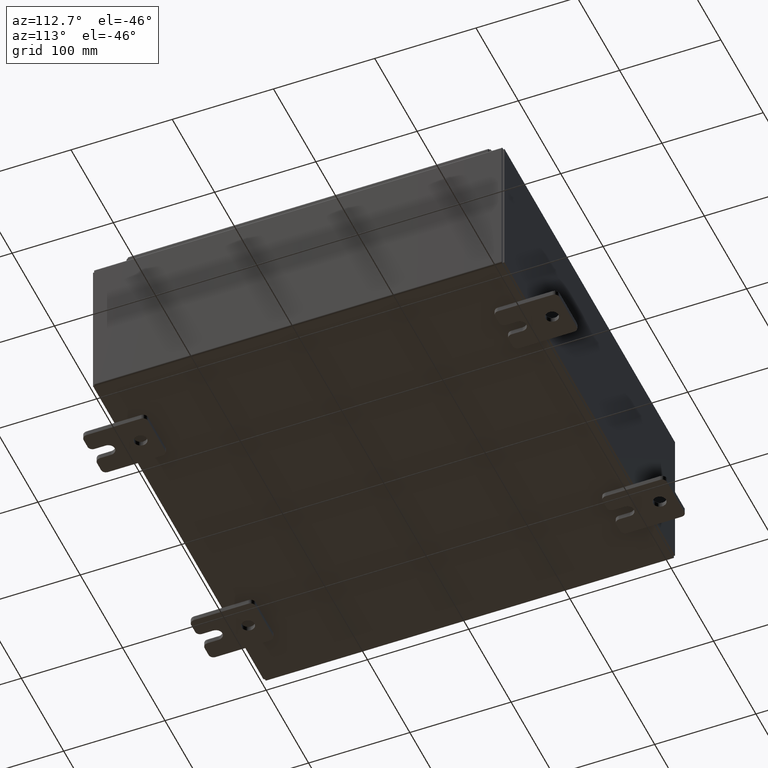
[diagram: clean part render]
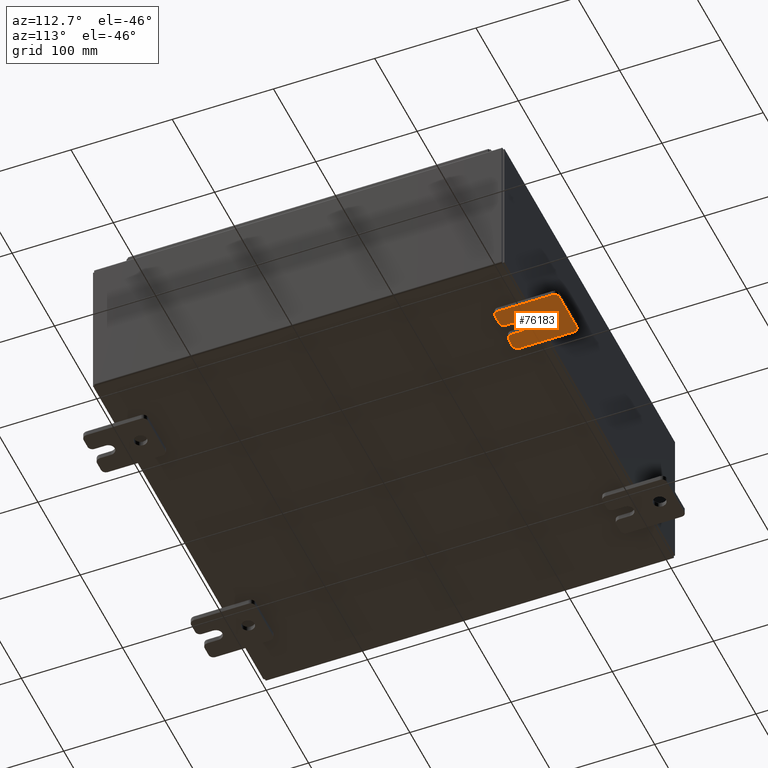
[diagram: same view with one face highlighted and labeled with its STEP entity id]
A machine part, auxiliary view. The second image highlights one B-rep face of the part: STEP entity #76183.
In plain terms, the highlighted planar face has unit normal (0, 0, 1).
Its self-contained STEP definition (entity closure, byte-faithful):
#443 = ORIENTED_EDGE ( 'NONE', *, *, #6986, .T. ) ;
#2052 = ORIENTED_EDGE ( 'NONE', *, *, #31927, .F. ) ;
#2378 = DIRECTION ( 'NONE',  ( -1.000000000000000000, -0.0000000000000000000, 0.0000000000000000000 ) ) ;
#2629 = EDGE_CURVE ( 'NONE', #5216, #86371, #90608, .T. ) ;
#4566 = EDGE_CURVE ( 'NONE', #22547, #68444, #13701, .T. ) ;
#4684 = CARTESIAN_POINT ( 'NONE',  ( -0.1879999999999997800, -1.060000000000004500, -1.000000000000006400 ) ) ;
#5034 = DIRECTION ( 'NONE',  ( 0.0000000000000000000, 0.0000000000000000000, -1.000000000000000000 ) ) ;
#5216 = VERTEX_POINT ( 'NONE', #101483 ) ;
#5678 = CIRCLE ( 'NONE', #13656, 0.1900000000000011100 ) ;
#6074 = ORIENTED_EDGE ( 'NONE', *, *, #74602, .T. ) ;
#6986 = EDGE_CURVE ( 'NONE', #96391, #53823, #93968, .T. ) ;
#7015 = AXIS2_PLACEMENT_3D ( 'NONE', #64469, #15446, #72632 ) ;
#7370 = LINE ( 'NONE', #45206, #89164 ) ;
#8362 = AXIS2_PLACEMENT_3D ( 'NONE', #51330, #2378, #59603 ) ;
#9652 = CARTESIAN_POINT ( 'NONE',  ( -0.1879999999999997800, -1.250000000000005600, -1.000000000000006200 ) ) ;
#10375 = CARTESIAN_POINT ( 'NONE',  ( -0.1880000000000001900, -0.6249999999999992200, 6.829619984160658000E-017 ) ) ;
#10729 = CARTESIAN_POINT ( 'NONE',  ( -0.1880000000000010000, 0.6249999999999992200, 0.2499999999999999200 ) ) ;
#10742 = EDGE_CURVE ( 'NONE', #18351, #46493, #92463, .T. ) ;
#10743 = FACE_BOUND ( 'NONE', #28377, .T. ) ;
#11629 = CARTESIAN_POINT ( 'NONE',  ( -0.1879999999999997800, -1.060000000000002100, 0.4400000000000016700 ) ) ;
#11815 = CARTESIAN_POINT ( 'NONE',  ( -0.1879999999999997800, 1.059999999999993600, -0.8100000000000089400 ) ) ;
#13138 = DIRECTION ( 'NONE',  ( 0.0000000000000000000, 1.639108796198553600E-015, 1.000000000000000000 ) ) ;
#13656 = AXIS2_PLACEMENT_3D ( 'NONE', #23197, #80346, #31425 ) ;
#13701 = CIRCLE ( 'NONE', #33682, 0.1900000000000011100 ) ;
#13988 = CARTESIAN_POINT ( 'NONE',  ( -0.1879999999999997800, -1.250000000000002200, 0.9999999999999992200 ) ) ;
#14542 = CARTESIAN_POINT ( 'NONE',  ( -0.1879999999999997800, 1.059999999999996500, 0.9999999999999953400 ) ) ;
#15241 = LINE ( 'NONE', #86351, #77902 ) ;
#15270 = DIRECTION ( 'NONE',  ( 1.000000000000000000, -0.0000000000000000000, -5.163192708025532000E-017 ) ) ;
#15446 = DIRECTION ( 'NONE',  ( 1.000000000000000000, -0.0000000000000000000, -5.163192708025532000E-017 ) ) ;
#15675 = VECTOR ( 'NONE', #83254, 39.37007874015748100 ) ;
#17345 = DIRECTION ( 'NONE',  ( -1.000000000000000000, -0.0000000000000000000, 0.0000000000000000000 ) ) ;
#18351 = VERTEX_POINT ( 'NONE', #66483 ) ;
#18630 = DIRECTION ( 'NONE',  ( -6.829619984160660000E-016, -1.000000000000000000, 0.0000000000000000000 ) ) ;
#19468 = CIRCLE ( 'NONE', #100804, 0.1900000000000011100 ) ;
#19878 = DIRECTION ( 'NONE',  ( 0.0000000000000000000, 0.0000000000000000000, -1.000000000000000000 ) ) ;
#20067 = DIRECTION ( 'NONE',  ( 0.0000000000000000000, 0.0000000000000000000, -1.000000000000000000 ) ) ;
#20096 = AXIS2_PLACEMENT_3D ( 'NONE', #11629, #68842, #19878 ) ;
#20929 = EDGE_CURVE ( 'NONE', #22547, #32087, #35223, .T. ) ;
#22547 = VERTEX_POINT ( 'NONE', #14542 ) ;
#23197 = CARTESIAN_POINT ( 'NONE',  ( -0.1879999999999997800, -1.060000000000003400, -0.4400000000000005000 ) ) ;
#25323 = EDGE_CURVE ( 'NONE', #49101, #88992, #102632, .T. ) ;
#26275 = CARTESIAN_POINT ( 'NONE',  ( -0.1880000000000001900, -0.6249999999999992200, 0.2500000000000005000 ) ) ;
#26720 = ORIENTED_EDGE ( 'NONE', *, *, #52695, .T. ) ;
#26738 = EDGE_CURVE ( 'NONE', #49101, #46493, #79464, .T. ) ;
#26835 = AXIS2_PLACEMENT_3D ( 'NONE', #64287, #15270, #72465 ) ;
#27861 = DIRECTION ( 'NONE',  ( -6.556435184794182400E-016, -1.000000000000000000, -1.639108796198545600E-016 ) ) ;
#28377 = EDGE_LOOP ( 'NONE', ( #443, #98280 ) ) ;
#29060 = ORIENTED_EDGE ( 'NONE', *, *, #25323, .F. ) ;
#29245 = CARTESIAN_POINT ( 'NONE',  ( -0.1879999999999997800, 1.249999999999994200, -1.000000000000010400 ) ) ;
#31425 = DIRECTION ( 'NONE',  ( 0.0000000000000000000, 0.0000000000000000000, -1.000000000000000000 ) ) ;
#31927 = EDGE_CURVE ( 'NONE', #105502, #60514, #7370, .T. ) ;
#32087 = VERTEX_POINT ( 'NONE', #37463 ) ;
#33094 = CIRCLE ( 'NONE', #75313, 0.2499999999999999200 ) ;
#33682 = AXIS2_PLACEMENT_3D ( 'NONE', #66339, #17345, #74518 ) ;
#33980 = ORIENTED_EDGE ( 'NONE', *, *, #10742, .F. ) ;
#35223 = LINE ( 'NONE', #75661, #97807 ) ;
#36306 = ORIENTED_EDGE ( 'NONE', *, *, #65897, .F. ) ;
#37463 = CARTESIAN_POINT ( 'NONE',  ( -0.1879999999999997800, -1.060000000000001200, 0.9999999999999988900 ) ) ;
#37626 = CARTESIAN_POINT ( 'NONE',  ( -0.1880000000000004700, -1.060000000000002100, 0.2500000000000005000 ) ) ;
#38106 = ORIENTED_EDGE ( 'NONE', *, *, #99046, .F. ) ;
#38384 = EDGE_CURVE ( 'NONE', #89744, #88992, #19468, .T. ) ;
#43046 = CIRCLE ( 'NONE', #26835, 0.2499999999999999200 ) ;
#43902 = EDGE_LOOP ( 'NONE', ( #96906, #64166, #80544, #73344, #36306, #85211, #29060, #46966, #33980, #26720, #2052, #65620, #38106, #6074 ) ) ;
#45206 = CARTESIAN_POINT ( 'NONE',  ( -0.1880000000000001900, -0.6249999999999992200, -0.2499999999999993900 ) ) ;
#46493 = VERTEX_POINT ( 'NONE', #100366 ) ;
#46966 = ORIENTED_EDGE ( 'NONE', *, *, #26738, .T. ) ;
#47177 = VECTOR ( 'NONE', #13138, 39.37007874015748100 ) ;
#47691 = DIRECTION ( 'NONE',  ( -0.0000000000000000000, 0.0000000000000000000, -1.000000000000000000 ) ) ;
#48860 = DIRECTION ( 'NONE',  ( 0.0000000000000000000, -1.639108796198553600E-015, -1.000000000000000000 ) ) ;
#49101 = VERTEX_POINT ( 'NONE', #4684 ) ;
#51330 = CARTESIAN_POINT ( 'NONE',  ( -0.1879999999999997800, -1.060000000000001600, 0.8099999999999978300 ) ) ;
#51586 = VECTOR ( 'NONE', #79385, 39.37007874015748100 ) ;
#52695 = EDGE_CURVE ( 'NONE', #18351, #60514, #5678, .T. ) ;
#53395 = CARTESIAN_POINT ( 'NONE',  ( -0.1880000000000001900, -0.6249999999999992200, -0.2499999999999998600 ) ) ;
#53823 = VERTEX_POINT ( 'NONE', #10729 ) ;
#54006 = DIRECTION ( 'NONE',  ( -1.000000000000000000, -0.0000000000000000000, 0.0000000000000000000 ) ) ;
#57629 = CARTESIAN_POINT ( 'NONE',  ( -0.1879999999999997800, -1.250000000000003100, 0.4400000000000020000 ) ) ;
#59513 = VERTEX_POINT ( 'NONE', #26275 ) ;
#59603 = DIRECTION ( 'NONE',  ( 0.0000000000000000000, 7.189073667537492800E-016, -1.000000000000000000 ) ) ;
#60514 = VERTEX_POINT ( 'NONE', #103578 ) ;
#60871 = CARTESIAN_POINT ( 'NONE',  ( -0.1879999999999997800, 1.249999999999997300, 0.8099999999999935000 ) ) ;
#63321 = AXIS2_PLACEMENT_3D ( 'NONE', #88430, #96671, #47691 ) ;
#64166 = ORIENTED_EDGE ( 'NONE', *, *, #72155, .T. ) ;
#64287 = CARTESIAN_POINT ( 'NONE',  ( -0.1880000000000010000, 0.6249999999999992200, -7.703811342100550500E-020 ) ) ;
#64469 = CARTESIAN_POINT ( 'NONE',  ( -0.1880000000000010000, 0.6249999999999992200, -7.703811342100550500E-020 ) ) ;
#65620 = ORIENTED_EDGE ( 'NONE', *, *, #86668, .F. ) ;
#65897 = EDGE_CURVE ( 'NONE', #89744, #68444, #90667, .T. ) ;
#66339 = CARTESIAN_POINT ( 'NONE',  ( -0.1879999999999997800, 1.059999999999996300, 0.8099999999999938400 ) ) ;
#66483 = CARTESIAN_POINT ( 'NONE',  ( -0.1879999999999997800, -1.250000000000004700, -0.4400000000000002200 ) ) ;
#67079 = CIRCLE ( 'NONE', #20096, 0.1900000000000011400 ) ;
#67614 = DIRECTION ( 'NONE',  ( -1.000000000000000000, 6.523827964459549700E-016, 5.163192708025532000E-017 ) ) ;
#68444 = VERTEX_POINT ( 'NONE', #60871 ) ;
#68842 = DIRECTION ( 'NONE',  ( -1.000000000000000000, -0.0000000000000000000, 0.0000000000000000000 ) ) ;
#69026 = DIRECTION ( 'NONE',  ( -1.000000000000000000, -0.0000000000000000000, 0.0000000000000000000 ) ) ;
#69989 = CARTESIAN_POINT ( 'NONE',  ( -0.1879999999999997800, 1.249999999999994700, -0.8100000000000092700 ) ) ;
#71433 = VECTOR ( 'NONE', #48860, 39.37007874015748100 ) ;
#71509 = AXIS2_PLACEMENT_3D ( 'NONE', #102949, #54006, #5034 ) ;
#71761 = EDGE_CURVE ( 'NONE', #53823, #96391, #43046, .T. ) ;
#72155 = EDGE_CURVE ( 'NONE', #5216, #32087, #85172, .T. ) ;
#72465 = DIRECTION ( 'NONE',  ( 0.0000000000000000000, 0.0000000000000000000, -1.000000000000000000 ) ) ;
#72632 = DIRECTION ( 'NONE',  ( 0.0000000000000000000, 0.0000000000000000000, -1.000000000000000000 ) ) ;
#73344 = ORIENTED_EDGE ( 'NONE', *, *, #4566, .T. ) ;
#74518 = DIRECTION ( 'NONE',  ( 0.0000000000000000000, 0.0000000000000000000, -1.000000000000000000 ) ) ;
#74602 = EDGE_CURVE ( 'NONE', #101960, #86371, #67079, .T. ) ;
#75313 = AXIS2_PLACEMENT_3D ( 'NONE', #10375, #67614, #18630 ) ;
#75661 = CARTESIAN_POINT ( 'NONE',  ( -0.1879999999999997800, 1.249999999999997600, 0.9999999999999951200 ) ) ;
#76183 = ADVANCED_FACE ( 'NONE', ( #10743, #95107 ), #96295, .F. ) ;
#77902 = VECTOR ( 'NONE', #78103, 39.37007874015748100 ) ;
#78103 = DIRECTION ( 'NONE',  ( 6.556435184794182400E-016, 1.000000000000000000, 0.0000000000000000000 ) ) ;
#79385 = DIRECTION ( 'NONE',  ( 0.0000000000000000000, -1.639108796198553600E-015, -1.000000000000000000 ) ) ;
#79464 = CIRCLE ( 'NONE', #71509, 0.1900000000000011100 ) ;
#80346 = DIRECTION ( 'NONE',  ( -1.000000000000000000, -0.0000000000000000000, 0.0000000000000000000 ) ) ;
#80544 = ORIENTED_EDGE ( 'NONE', *, *, #20929, .F. ) ;
#81791 = CARTESIAN_POINT ( 'NONE',  ( -0.1879999999999997800, 1.059999999999993400, -1.000000000000010000 ) ) ;
#83254 = DIRECTION ( 'NONE',  ( 0.0000000000000000000, 1.000000000000000000, -1.639108796198558100E-015 ) ) ;
#84276 = DIRECTION ( 'NONE',  ( 0.0000000000000000000, -1.000000000000000000, 1.639108796198558100E-015 ) ) ;
#85172 = CIRCLE ( 'NONE', #8362, 0.1900000000000011100 ) ;
#85211 = ORIENTED_EDGE ( 'NONE', *, *, #38384, .T. ) ;
#86351 = CARTESIAN_POINT ( 'NONE',  ( -0.1880000000000005800, -1.250000000000003800, 0.2500000000000005000 ) ) ;
#86371 = VERTEX_POINT ( 'NONE', #57629 ) ;
#86668 = EDGE_CURVE ( 'NONE', #59513, #105502, #33094, .T. ) ;
#88430 = CARTESIAN_POINT ( 'NONE',  ( -0.1879999999999997800, 0.0000000000000000000, 0.0000000000000000000 ) ) ;
#88992 = VERTEX_POINT ( 'NONE', #81791 ) ;
#89164 = VECTOR ( 'NONE', #27861, 39.37007874015748100 ) ;
#89744 = VERTEX_POINT ( 'NONE', #69989 ) ;
#90608 = LINE ( 'NONE', #97816, #71433 ) ;
#90667 = LINE ( 'NONE', #29245, #47177 ) ;
#92463 = LINE ( 'NONE', #13988, #51586 ) ;
#93389 = CARTESIAN_POINT ( 'NONE',  ( -0.1880000000000010000, 0.6249999999999992200, -0.2499999999999999200 ) ) ;
#93968 = CIRCLE ( 'NONE', #7015, 0.2499999999999999200 ) ;
#95107 = FACE_OUTER_BOUND ( 'NONE', #43902, .T. ) ;
#96295 = PLANE ( 'NONE',  #63321 ) ;
#96391 = VERTEX_POINT ( 'NONE', #93389 ) ;
#96671 = DIRECTION ( 'NONE',  ( 1.000000000000000000, 0.0000000000000000000, -0.0000000000000000000 ) ) ;
#96906 = ORIENTED_EDGE ( 'NONE', *, *, #2629, .F. ) ;
#97807 = VECTOR ( 'NONE', #84276, 39.37007874015748100 ) ;
#97816 = CARTESIAN_POINT ( 'NONE',  ( -0.1879999999999997800, -1.250000000000002200, 0.9999999999999992200 ) ) ;
#98280 = ORIENTED_EDGE ( 'NONE', *, *, #71761, .T. ) ;
#99046 = EDGE_CURVE ( 'NONE', #101960, #59513, #15241, .T. ) ;
#100366 = CARTESIAN_POINT ( 'NONE',  ( -0.1879999999999997800, -1.250000000000005300, -0.8100000000000047200 ) ) ;
#100804 = AXIS2_PLACEMENT_3D ( 'NONE', #11815, #69026, #20067 ) ;
#101483 = CARTESIAN_POINT ( 'NONE',  ( -0.1879999999999997800, -1.250000000000002400, 0.8099999999999980500 ) ) ;
#101960 = VERTEX_POINT ( 'NONE', #37626 ) ;
#102632 = LINE ( 'NONE', #9652, #15675 ) ;
#102949 = CARTESIAN_POINT ( 'NONE',  ( -0.1879999999999997800, -1.060000000000004100, -0.8100000000000050500 ) ) ;
#103578 = CARTESIAN_POINT ( 'NONE',  ( -0.1880000000000004700, -1.060000000000003400, -0.2499999999999994400 ) ) ;
#105502 = VERTEX_POINT ( 'NONE', #53395 ) ;